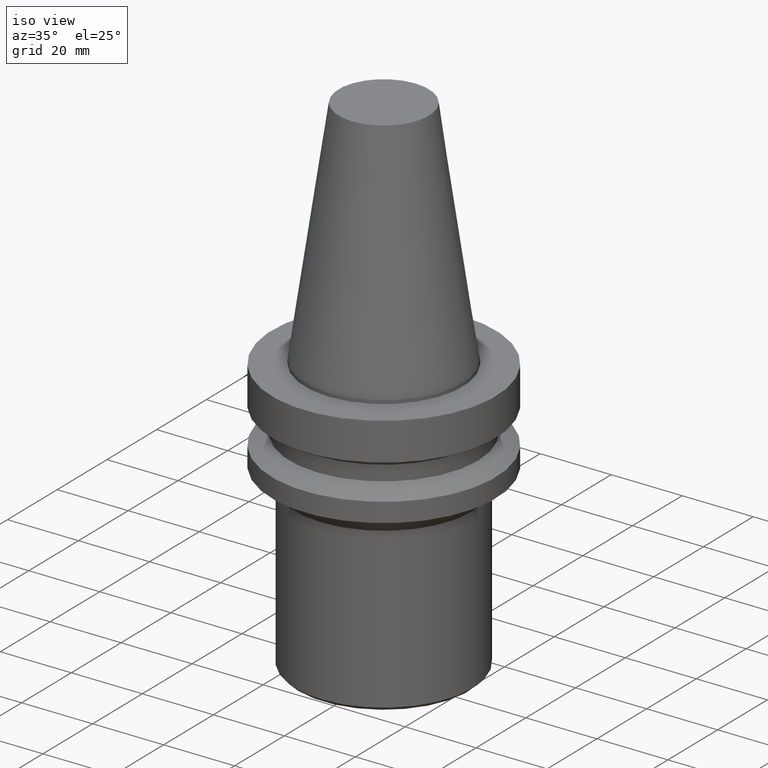
[diagram: clean part render]
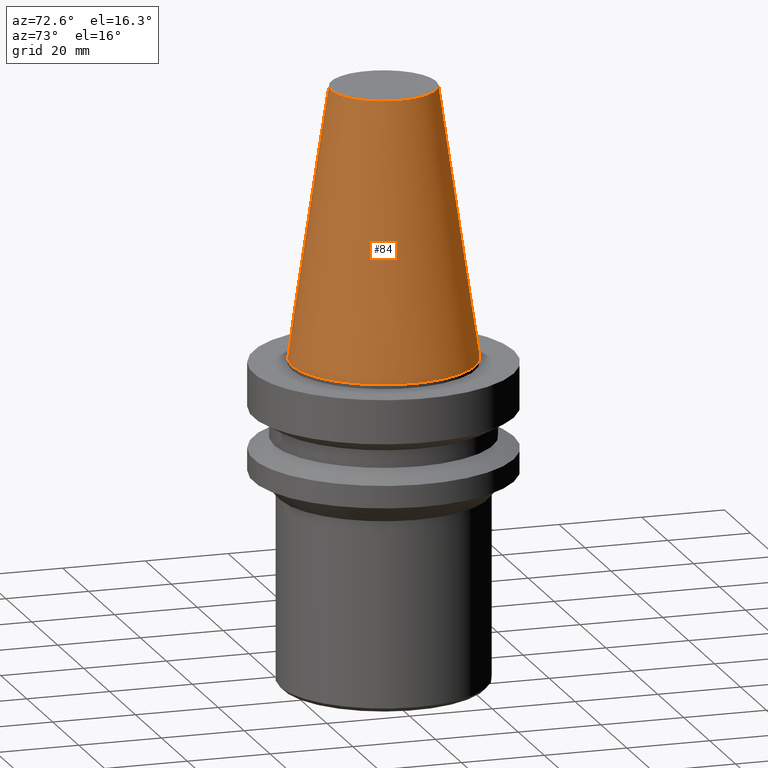
[diagram: tour spotlight — one face highlighted and labeled with its STEP entity id]
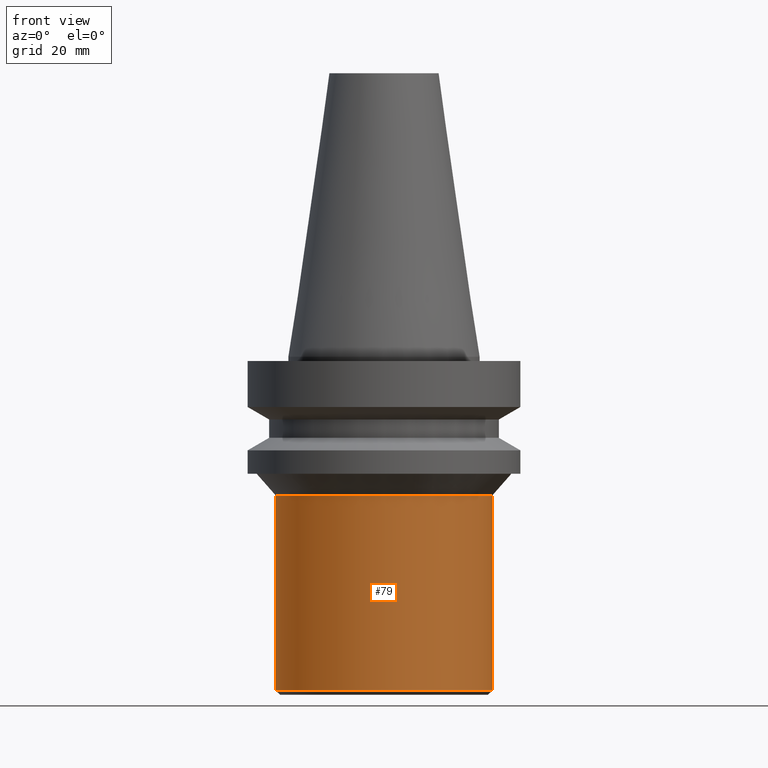
[diagram: tour spotlight — one face highlighted and labeled with its STEP entity id]
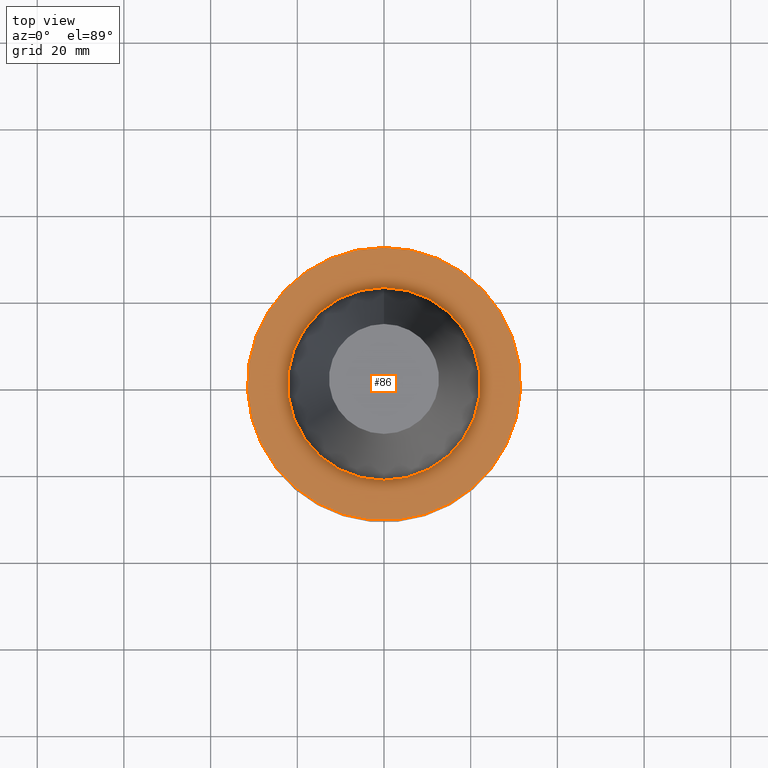
[diagram: tour spotlight — one face highlighted and labeled with its STEP entity id]
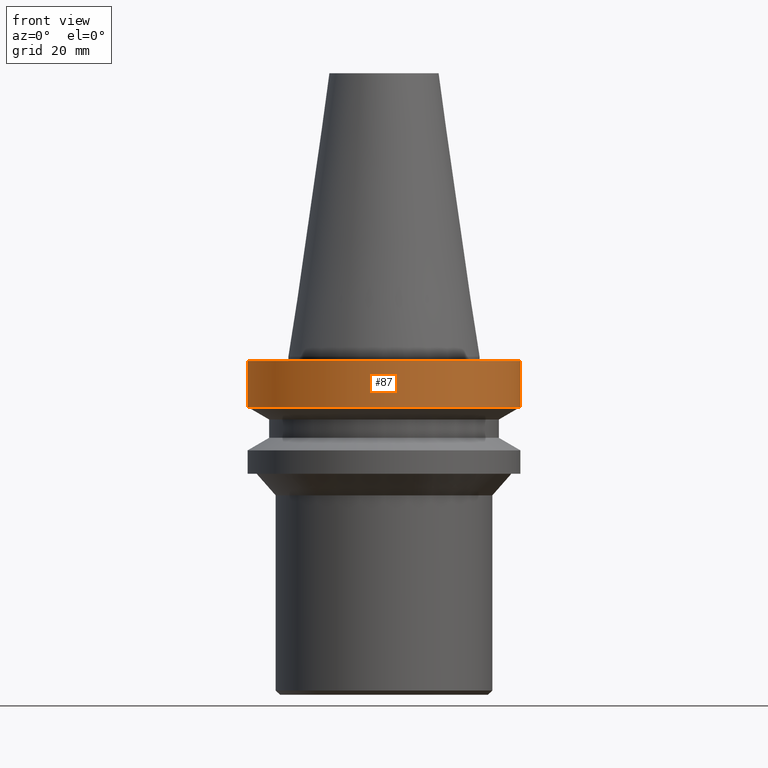
[diagram: tour spotlight — one face highlighted and labeled with its STEP entity id]
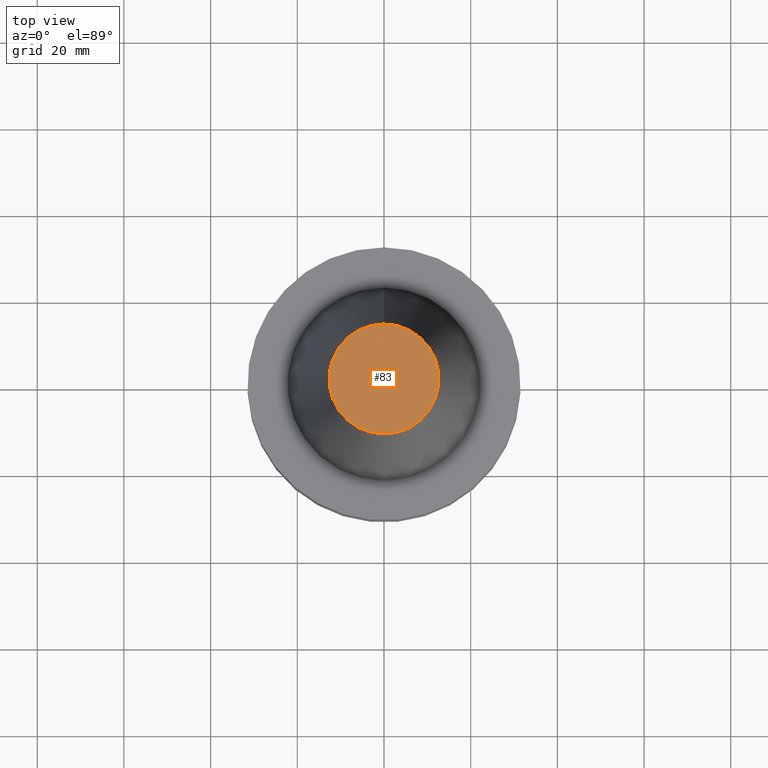
[diagram: tour spotlight — one face highlighted and labeled with its STEP entity id]
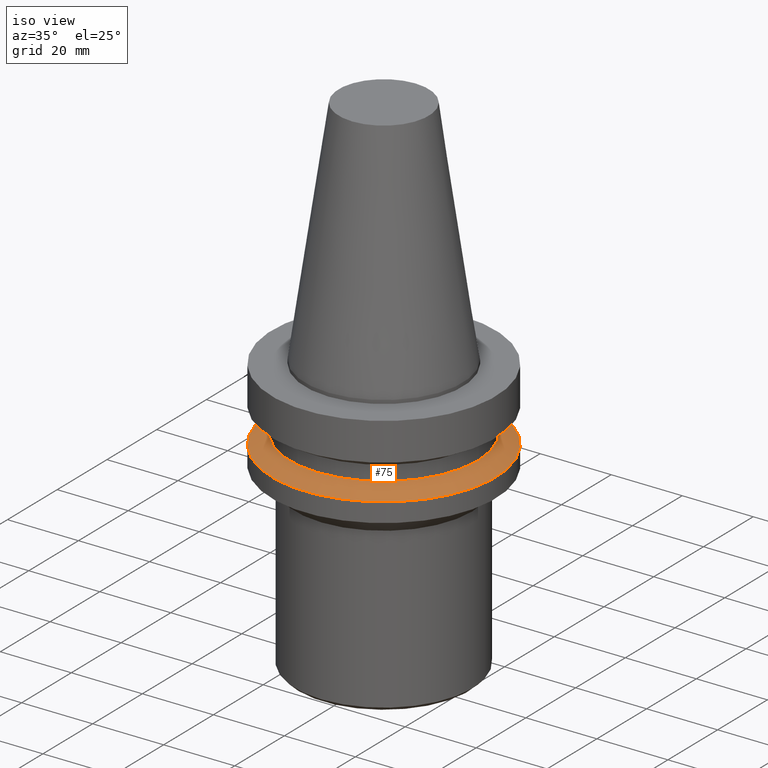
[diagram: tour spotlight — one face highlighted and labeled with its STEP entity id]
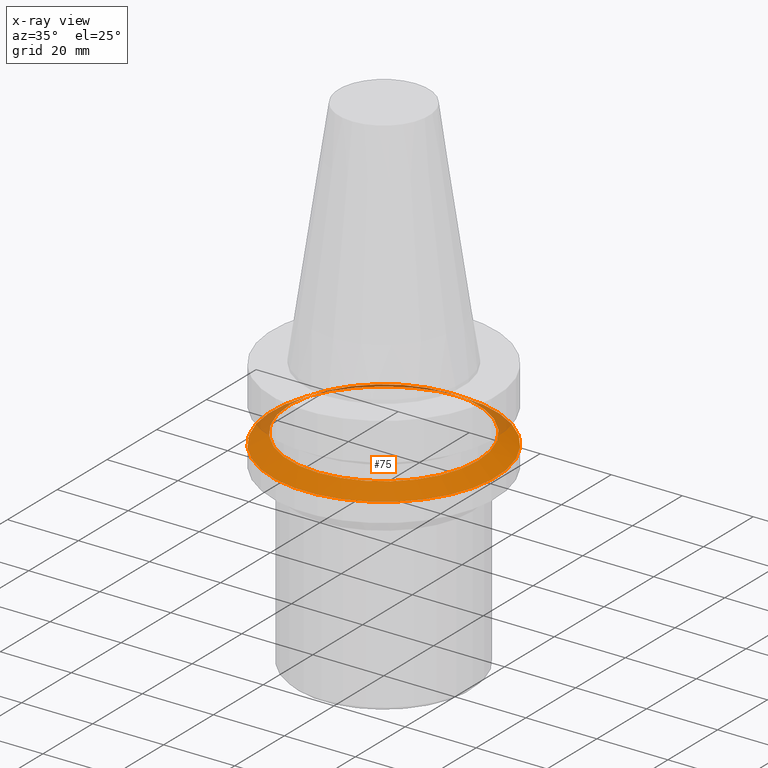
[diagram: x-ray of the same camera — body ghosted, this tour face saturated]
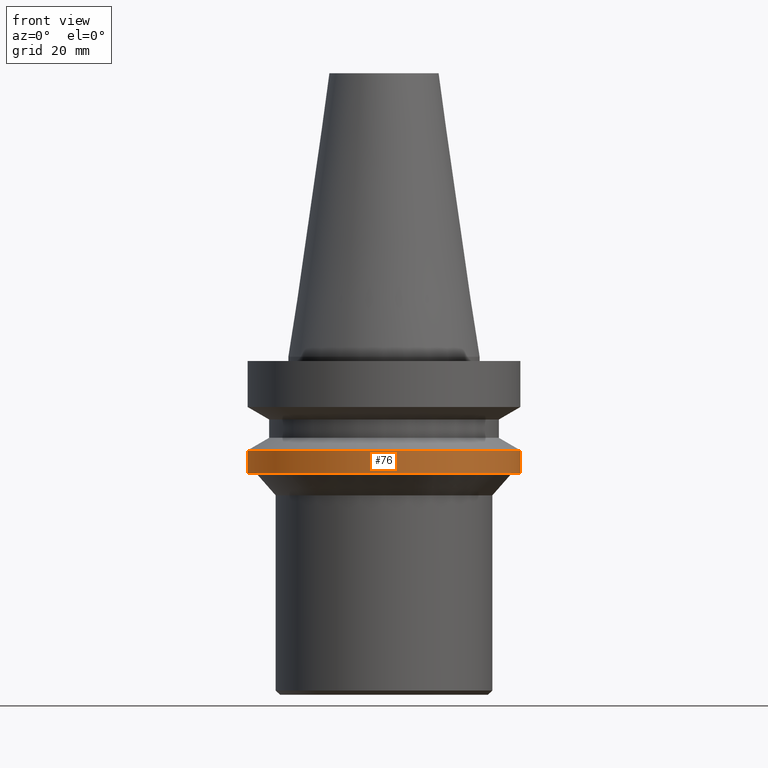
[diagram: tour spotlight — one face highlighted and labeled with its STEP entity id]
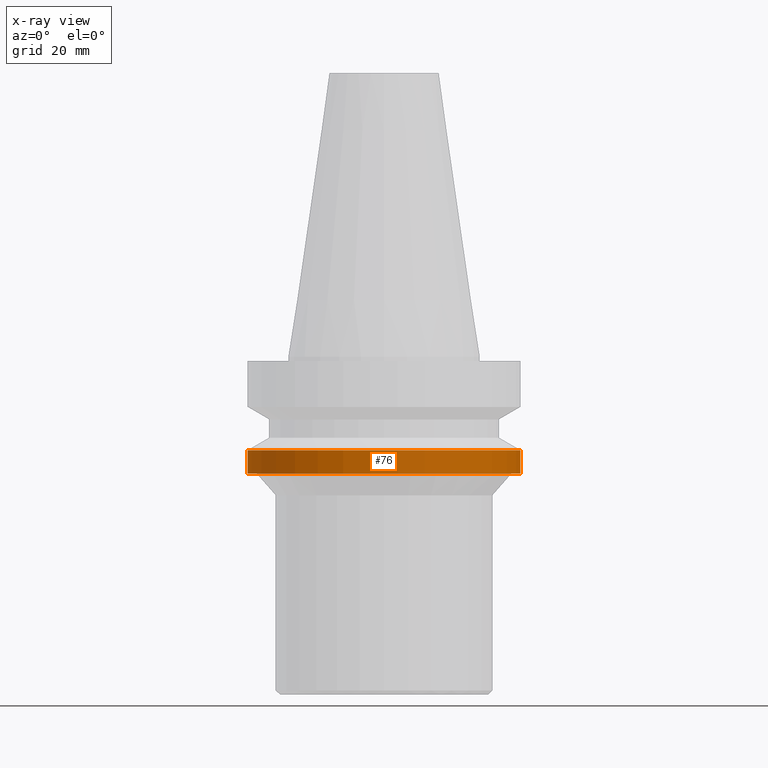
[diagram: x-ray of the same camera — body ghosted, this tour face saturated]
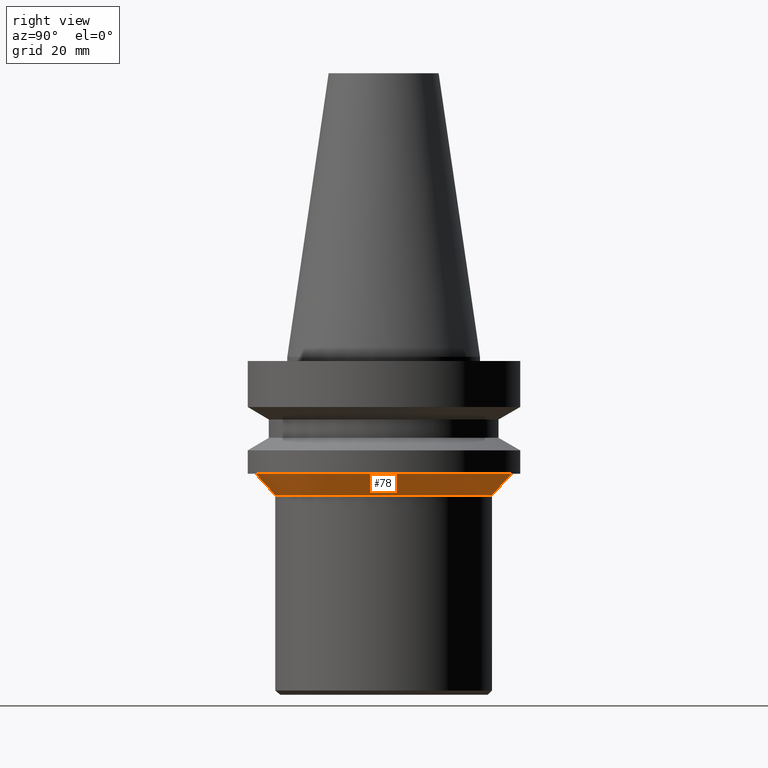
[diagram: tour spotlight — one face highlighted and labeled with its STEP entity id]
A machine part: a face-by-face anatomy tour. The part has 14 B-rep faces; the first image is the clean iso view, then the 8 largest visible faces are spotlighted one at a time (largest first), each with its STEP entity span.

Face 1 — auxiliary view, entity #84. In plain terms, the highlighted conical surface has half-angle 8.297 deg.
Definition (entity closure, byte-faithful):
#84=ADVANCED_FACE('',(#115,#116),#117,.T.);
#115=FACE_BOUND('',#155,.T.);
#116=FACE_BOUND('',#156,.T.);
#117=CONICAL_SURFACE('',#157,17.45625,0.144812498238939);
#155=EDGE_LOOP('',(#213));
#156=EDGE_LOOP('',(#214));
#157=AXIS2_PLACEMENT_3D('',#215,#216,#217);
#213=ORIENTED_EDGE('',*,*,#247,.F.);
#214=ORIENTED_EDGE('',*,*,#246,.T.);
#215=CARTESIAN_POINT('',(-2.00229751660592E-015,-4.00459503321185E-015,32.7));
#216=DIRECTION('',(6.12323399573677E-017,1.22464679914735E-016,-1.0));
#217=DIRECTION('',(-1.23259516440783E-032,1.0,1.22464679914735E-016));
#246=EDGE_CURVE('',#267,#267,#268,.T.);
#247=EDGE_CURVE('',#269,#269,#270,.T.);
#267=VERTEX_POINT('',#293);
#268=CIRCLE('',#294,12.6875);
#269=VERTEX_POINT('',#295);
#270=CIRCLE('',#296,22.225);
#293=CARTESIAN_POINT('',(-4.00459503321184E-015,12.6875,65.4));
#294=AXIS2_PLACEMENT_3D('',#327,#328,#329);
#295=CARTESIAN_POINT('',(-3.75194118486812E-030,22.225,5.9521777511105E-014));
#296=AXIS2_PLACEMENT_3D('',#330,#331,#332);
#327=CARTESIAN_POINT('',(-4.00459503321184E-015,-8.00919006642369E-015,65.4));
#328=DIRECTION('',(6.12323399573676E-017,1.22464679914735E-016,-1.0));
#329=DIRECTION('',(-1.23259516440783E-032,1.0,1.22464679914735E-016));
#330=CARTESIAN_POINT('',(-3.48065554802404E-030,-6.96131109604808E-030,5.6843418860808E-014));
#331=DIRECTION('',(6.12323399573677E-017,1.22464679914735E-016,-1.0));
#332=DIRECTION('',(-1.23259516440783E-032,1.0,1.22464679914735E-016));

Face 2 — front view, entity #79. In plain terms, the highlighted cylindrical surface (bore or boss wall) has radius 25 mm, axis along (-0, -0, 1).
Definition (entity closure, byte-faithful):
#79=ADVANCED_FACE('',(#102,#103),#104,.T.);
#102=FACE_BOUND('',#142,.T.);
#103=FACE_BOUND('',#143,.T.);
#104=CYLINDRICAL_SURFACE('',#144,25.0);
#142=EDGE_LOOP('',(#190));
#143=EDGE_LOOP('',(#191));
#144=AXIS2_PLACEMENT_3D('',#192,#193,#194);
#190=ORIENTED_EDGE('',*,*,#243,.F.);
#191=ORIENTED_EDGE('',*,*,#242,.T.);
#192=CARTESIAN_POINT('',(3.33652356820908E-015,6.67304713641816E-015,-54.489565));
#193=DIRECTION('',(-6.12323399573677E-017,-1.22464679914735E-016,1.0));
#194=DIRECTION('',(-1.23259516440783E-032,1.0,1.22464679914735E-016));
#242=EDGE_CURVE('',#259,#259,#260,.T.);
#243=EDGE_CURVE('',#261,#261,#262,.T.);
#259=VERTEX_POINT('',#285);
#260=CIRCLE('',#286,25.0);
#261=VERTEX_POINT('',#287);
#262=CIRCLE('',#288,25.0);
#285=CARTESIAN_POINT('',(1.95815695970085E-015,25.0,-31.97913));
#286=AXIS2_PLACEMENT_3D('',#315,#316,#317);
#287=CARTESIAN_POINT('',(4.71489017671731E-015,25.0,-77.0));
#288=AXIS2_PLACEMENT_3D('',#318,#319,#320);
#315=CARTESIAN_POINT('',(1.95815695970085E-015,3.91631391940171E-015,-31.97913));
#316=DIRECTION('',(6.12323399573677E-017,1.22464679914735E-016,-1.0));
#317=DIRECTION('',(-1.23259516440783E-032,1.0,1.22464679914735E-016));
#318=CARTESIAN_POINT('',(4.71489017671731E-015,9.42978035343462E-015,-77.0));
#319=DIRECTION('',(6.12323399573677E-017,1.22464679914735E-016,-1.0));
#320=DIRECTION('',(-1.23259516440783E-032,1.0,1.22464679914735E-016));

Face 3 — top view, entity #86. In plain terms, the highlighted planar face has unit normal (-0, -0, 1).
Definition (entity closure, byte-faithful):
#86=ADVANCED_FACE('',(#121,#122),#123,.T.);
#121=FACE_OUTER_BOUND('',#161,.T.);
#122=FACE_BOUND('',#162,.T.);
#123=PLANE('',#163);
#161=EDGE_LOOP('',(#223));
#162=EDGE_LOOP('',(#224));
#163=AXIS2_PLACEMENT_3D('',#225,#226,#227);
#223=ORIENTED_EDGE('',*,*,#249,.F.);
#224=ORIENTED_EDGE('',*,*,#248,.T.);
#225=CARTESIAN_POINT('',(6.12323399573638E-017,26.8625,-0.999999999999939));
#226=DIRECTION('',(-6.12323399573677E-017,-1.22464679914735E-016,1.0));
#227=DIRECTION('',(1.23259516440783E-032,-1.0,-1.22464679914735E-016));
#248=EDGE_CURVE('',#271,#271,#272,.T.);
#249=EDGE_CURVE('',#273,#273,#274,.T.);
#271=VERTEX_POINT('',#297);
#272=CIRCLE('',#298,22.225);
#273=VERTEX_POINT('',#299);
#274=CIRCLE('',#300,31.5000000000001);
#297=CARTESIAN_POINT('',(6.12323399573639E-017,22.225,-0.99999999999994));
#298=AXIS2_PLACEMENT_3D('',#333,#334,#335);
#299=CARTESIAN_POINT('',(6.12323399573638E-017,31.5000000000001,-0.999999999999939));
#300=AXIS2_PLACEMENT_3D('',#336,#337,#338);
#333=CARTESIAN_POINT('',(6.12323399573642E-017,1.22464679914728E-016,-0.999999999999943));
#334=DIRECTION('',(6.12323399573677E-017,1.22464679914735E-016,-1.0));
#335=DIRECTION('',(-1.23259516440783E-032,1.0,1.22464679914735E-016));
#336=CARTESIAN_POINT('',(6.12323399573642E-017,1.22464679914728E-016,-0.999999999999943));
#337=DIRECTION('',(6.12323399573677E-017,1.22464679914735E-016,-1.0));
#338=DIRECTION('',(-1.23259516440783E-032,1.0,1.22464679914735E-016));

Face 4 — front view, entity #87. In plain terms, the highlighted cylindrical surface (bore or boss wall) has radius 31.5 mm, axis along (-0, -0, 1).
Definition (entity closure, byte-faithful):
#87=ADVANCED_FACE('',(#124,#125),#126,.T.);
#124=FACE_BOUND('',#164,.T.);
#125=FACE_BOUND('',#165,.T.);
#126=CYLINDRICAL_SURFACE('',#166,31.5000000000001);
#164=EDGE_LOOP('',(#228));
#165=EDGE_LOOP('',(#229));
#166=AXIS2_PLACEMENT_3D('',#230,#231,#232);
#228=ORIENTED_EDGE('',*,*,#250,.F.);
#229=ORIENTED_EDGE('',*,*,#249,.T.);
#230=CARTESIAN_POINT('',(3.85763741731412E-016,7.71527483462825E-016,-6.29999999999994));
#231=DIRECTION('',(-6.12323399573677E-017,-1.22464679914735E-016,1.0));
#232=DIRECTION('',(-1.23259516440783E-032,1.0,1.22464679914735E-016));
#249=EDGE_CURVE('',#273,#273,#274,.T.);
#250=EDGE_CURVE('',#275,#275,#276,.T.);
#273=VERTEX_POINT('',#299);
#274=CIRCLE('',#300,31.5000000000001);
#275=VERTEX_POINT('',#301);
#276=CIRCLE('',#302,31.5000000000001);
#299=CARTESIAN_POINT('',(6.12323399573638E-017,31.5000000000001,-0.999999999999939));
#300=AXIS2_PLACEMENT_3D('',#336,#337,#338);
#301=CARTESIAN_POINT('',(7.1029514350546E-016,31.5000000000001,-11.5999999999999));
#302=AXIS2_PLACEMENT_3D('',#339,#340,#341);
#336=CARTESIAN_POINT('',(6.12323399573642E-017,1.22464679914728E-016,-0.999999999999943));
#337=DIRECTION('',(6.12323399573677E-017,1.22464679914735E-016,-1.0));
#338=DIRECTION('',(-1.23259516440783E-032,1.0,1.22464679914735E-016));
#339=CARTESIAN_POINT('',(7.10295143505461E-016,1.42059028701092E-015,-11.5999999999999));
#340=DIRECTION('',(6.12323399573677E-017,1.22464679914735E-016,-1.0));
#341=DIRECTION('',(-1.23259516440783E-032,1.0,1.22464679914735E-016));

Face 5 — top view, entity #83. In plain terms, the highlighted planar face has unit normal (-0, -0, 1).
Definition (entity closure, byte-faithful):
#83=ADVANCED_FACE('',(#113),#114,.T.);
#113=FACE_OUTER_BOUND('',#153,.T.);
#114=PLANE('',#154);
#153=EDGE_LOOP('',(#209));
#154=AXIS2_PLACEMENT_3D('',#210,#211,#212);
#209=ORIENTED_EDGE('',*,*,#246,.F.);
#210=CARTESIAN_POINT('',(-4.00459503321184E-015,6.34375,65.4));
#211=DIRECTION('',(-6.12323399573677E-017,-1.22464679914735E-016,1.0));
#212=DIRECTION('',(1.23259516440783E-032,-1.0,-1.22464679914735E-016));
#246=EDGE_CURVE('',#267,#267,#268,.T.);
#267=VERTEX_POINT('',#293);
#268=CIRCLE('',#294,12.6875);
#293=CARTESIAN_POINT('',(-4.00459503321184E-015,12.6875,65.4));
#294=AXIS2_PLACEMENT_3D('',#327,#328,#329);
#327=CARTESIAN_POINT('',(-4.00459503321184E-015,-8.00919006642369E-015,65.4));
#328=DIRECTION('',(6.12323399573676E-017,1.22464679914735E-016,-1.0));
#329=DIRECTION('',(-1.23259516440783E-032,1.0,1.22464679914735E-016));

Face 6 — iso view, entity #75. An x-ray twin of the same camera follows (body ghosted, this face saturated) — the face is partly hidden behind the body. In plain terms, the highlighted conical surface has half-angle 60 deg.
Definition (entity closure, byte-faithful):
#75=ADVANCED_FACE('',(#90,#91),#92,.T.);
#90=FACE_BOUND('',#130,.T.);
#91=FACE_BOUND('',#131,.T.);
#92=CONICAL_SURFACE('',#132,29.0,1.0471975511966);
#130=EDGE_LOOP('',(#170));
#131=EDGE_LOOP('',(#171));
#132=AXIS2_PLACEMENT_3D('',#172,#173,#174);
#170=ORIENTED_EDGE('',*,*,#238,.F.);
#171=ORIENTED_EDGE('',*,*,#239,.T.);
#172=CARTESIAN_POINT('',(1.23423727318539E-015,2.46847454637079E-015,-20.1566243270258));
#173=DIRECTION('',(6.12323399573676E-017,1.22464679914735E-016,-1.0));
#174=DIRECTION('',(-1.23259516440783E-032,1.0,1.22464679914735E-016));
#238=EDGE_CURVE('',#251,#251,#252,.T.);
#239=EDGE_CURVE('',#253,#253,#254,.T.);
#251=VERTEX_POINT('',#277);
#252=CIRCLE('',#278,31.5);
#253=VERTEX_POINT('',#279);
#254=CIRCLE('',#280,26.5000000000001);
#277=CARTESIAN_POINT('',(1.32261854307913E-015,31.5,-21.5999999999999));
#278=AXIS2_PLACEMENT_3D('',#303,#304,#305);
#279=CARTESIAN_POINT('',(1.14585600329165E-015,26.5000000000001,-18.7132486540518));
#280=AXIS2_PLACEMENT_3D('',#306,#307,#308);
#303=CARTESIAN_POINT('',(1.32261854307913E-015,2.64523708615827E-015,-21.5999999999999));
#304=DIRECTION('',(6.12323399573677E-017,1.22464679914735E-016,-1.0));
#305=DIRECTION('',(-1.23259516440783E-032,1.0,1.22464679914735E-016));
#306=CARTESIAN_POINT('',(1.14585600329165E-015,2.2917120065833E-015,-18.7132486540518));
#307=DIRECTION('',(6.12323399573677E-017,1.22464679914735E-016,-1.0));
#308=DIRECTION('',(-1.23259516440783E-032,1.0,1.22464679914735E-016));

Face 7 — front view, entity #76. An x-ray twin of the same camera follows (body ghosted, this face saturated) — the face is partly hidden behind the body. In plain terms, the highlighted cylindrical surface (bore or boss wall) has radius 31.5 mm, axis along (-0, -0, 1).
Definition (entity closure, byte-faithful):
#76=ADVANCED_FACE('',(#93,#94),#95,.T.);
#93=FACE_BOUND('',#133,.T.);
#94=FACE_BOUND('',#134,.T.);
#95=CYLINDRICAL_SURFACE('',#135,31.5000000000002);
#133=EDGE_LOOP('',(#175));
#134=EDGE_LOOP('',(#176));
#135=AXIS2_PLACEMENT_3D('',#177,#178,#179);
#175=ORIENTED_EDGE('',*,*,#240,.F.);
#176=ORIENTED_EDGE('',*,*,#238,.T.);
#177=CARTESIAN_POINT('',(1.48794586096403E-015,2.97589172192806E-015,-24.2999999999999));
#178=DIRECTION('',(-6.12323399573677E-017,-1.22464679914735E-016,1.0));
#179=DIRECTION('',(-1.23259516440783E-032,1.0,1.22464679914735E-016));
#238=EDGE_CURVE('',#251,#251,#252,.T.);
#240=EDGE_CURVE('',#255,#255,#256,.T.);
#251=VERTEX_POINT('',#277);
#252=CIRCLE('',#278,31.5);
#255=VERTEX_POINT('',#281);
#256=CIRCLE('',#282,31.5000000000004);
#277=CARTESIAN_POINT('',(1.32261854307913E-015,31.5,-21.5999999999999));
#278=AXIS2_PLACEMENT_3D('',#303,#304,#305);
#281=CARTESIAN_POINT('',(1.65327317884893E-015,31.5000000000004,-27.0));
#282=AXIS2_PLACEMENT_3D('',#309,#310,#311);
#303=CARTESIAN_POINT('',(1.32261854307913E-015,2.64523708615827E-015,-21.5999999999999));
#304=DIRECTION('',(6.12323399573677E-017,1.22464679914735E-016,-1.0));
#305=DIRECTION('',(-1.23259516440783E-032,1.0,1.22464679914735E-016));
#309=CARTESIAN_POINT('',(1.65327317884893E-015,3.30654635769785E-015,-27.0));
#310=DIRECTION('',(6.12323399573677E-017,1.22464679914735E-016,-1.0));
#311=DIRECTION('',(-1.23259516440783E-032,1.0,1.22464679914735E-016));

Face 8 — right view, entity #78. In plain terms, the highlighted conical surface has half-angle 42.382 deg.
Definition (entity closure, byte-faithful):
#78=ADVANCED_FACE('',(#99,#100),#101,.T.);
#99=FACE_BOUND('',#139,.T.);
#100=FACE_BOUND('',#140,.T.);
#101=CONICAL_SURFACE('',#141,27.2718200035607,0.739698563021532);
#139=EDGE_LOOP('',(#185));
#140=EDGE_LOOP('',(#186));
#141=AXIS2_PLACEMENT_3D('',#187,#188,#189);
#185=ORIENTED_EDGE('',*,*,#242,.F.);
#186=ORIENTED_EDGE('',*,*,#241,.T.);
#187=CARTESIAN_POINT('',(1.80571506927489E-015,3.61143013854978E-015,-29.489565));
#188=DIRECTION('',(-6.12323399573676E-017,-1.22464679914735E-016,1.0));
#189=DIRECTION('',(-1.23259516440783E-032,1.0,1.22464679914735E-016));
#241=EDGE_CURVE('',#257,#257,#258,.T.);
#242=EDGE_CURVE('',#259,#259,#260,.T.);
#257=VERTEX_POINT('',#283);
#258=CIRCLE('',#284,29.5436400071215);
#259=VERTEX_POINT('',#285);
#260=CIRCLE('',#286,25.0);
#283=CARTESIAN_POINT('',(1.65327317884893E-015,29.5436400071215,-27.0));
#284=AXIS2_PLACEMENT_3D('',#312,#313,#314);
#285=CARTESIAN_POINT('',(1.95815695970085E-015,25.0,-31.97913));
#286=AXIS2_PLACEMENT_3D('',#315,#316,#317);
#312=CARTESIAN_POINT('',(1.65327317884893E-015,3.30654635769785E-015,-27.0));
#313=DIRECTION('',(6.12323399573677E-017,1.22464679914735E-016,-1.0));
#314=DIRECTION('',(-1.23259516440783E-032,1.0,1.22464679914735E-016));
#315=CARTESIAN_POINT('',(1.95815695970085E-015,3.91631391940171E-015,-31.97913));
#316=DIRECTION('',(6.12323399573677E-017,1.22464679914735E-016,-1.0));
#317=DIRECTION('',(-1.23259516440783E-032,1.0,1.22464679914735E-016));